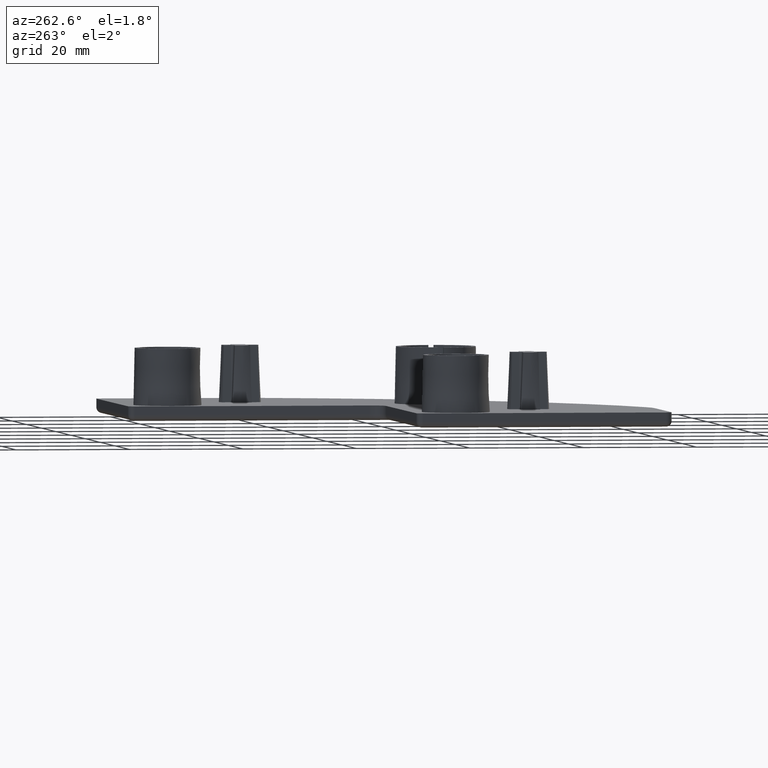
[diagram: clean part render]
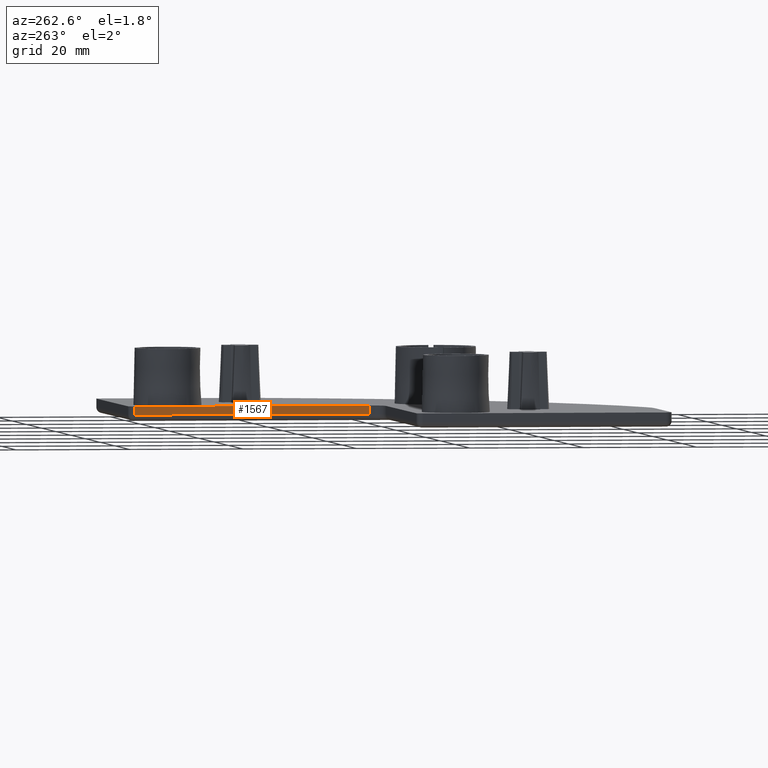
[diagram: same view with one face highlighted and labeled with its STEP entity id]
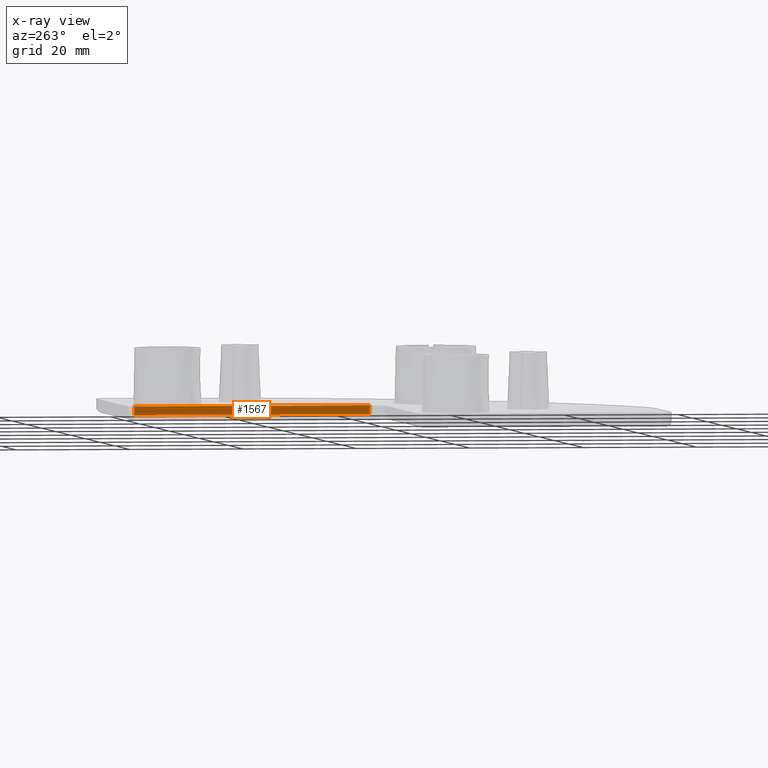
[diagram: x-ray of the same camera — body ghosted, the highlighted face saturated]
A machine part, auxiliary view. The second image highlights one B-rep face of the part: STEP entity #1567.
The next image is the same camera in x-ray: the body ghosted, the highlighted face saturated — about 0% of this face is hidden behind the body in this view.
In plain terms, the highlighted planar face has unit normal (-1, 0, 0).
Its self-contained STEP definition (entity closure, byte-faithful):
#265=FACE_OUTER_BOUND('',#363,.T.);
#363=EDGE_LOOP('',(#1426,#1427,#1428,#1429));
#451=LINE('',#2631,#569);
#466=LINE('',#2721,#584);
#478=LINE('',#2753,#596);
#482=LINE('',#2762,#600);
#569=VECTOR('',#2103,10.);
#584=VECTOR('',#2200,10.);
#596=VECTOR('',#2248,10.);
#600=VECTOR('',#2262,10.);
#709=VERTEX_POINT('',#2629);
#710=VERTEX_POINT('',#2630);
#741=VERTEX_POINT('',#2711);
#743=VERTEX_POINT('',#2717);
#909=EDGE_CURVE('',#709,#710,#451,.T.);
#953=EDGE_CURVE('',#741,#743,#466,.T.);
#970=EDGE_CURVE('',#709,#741,#478,.T.);
#974=EDGE_CURVE('',#710,#743,#482,.T.);
#1426=ORIENTED_EDGE('',*,*,#953,.F.);
#1427=ORIENTED_EDGE('',*,*,#970,.F.);
#1428=ORIENTED_EDGE('',*,*,#909,.T.);
#1429=ORIENTED_EDGE('',*,*,#974,.T.);
#1476=PLANE('',#1775);
#1567=ADVANCED_FACE('',(#265),#1476,.T.);
#1775=AXIS2_PLACEMENT_3D('',#2763,#2263,#2264);
#2103=DIRECTION('',(0.,1.,0.));
#2200=DIRECTION('',(0.,1.,0.));
#2248=DIRECTION('',(0.,0.,-1.));
#2262=DIRECTION('',(0.,0.,-1.));
#2263=DIRECTION('center_axis',(-1.,0.,0.));
#2264=DIRECTION('ref_axis',(0.,1.,0.));
#2629=CARTESIAN_POINT('',(-22.5,25.,0.));
#2630=CARTESIAN_POINT('',(-22.5,66.5,0.));
#2631=CARTESIAN_POINT('',(-22.5,25.,0.));
#2711=CARTESIAN_POINT('',(-22.5,25.,-1.5));
#2717=CARTESIAN_POINT('',(-22.5,66.5,-1.5));
#2721=CARTESIAN_POINT('',(-22.5,24.2917599345795,-1.5));
#2753=CARTESIAN_POINT('',(-22.5,25.,0.));
#2762=CARTESIAN_POINT('',(-22.5,66.5,0.));
#2763=CARTESIAN_POINT('Origin',(-22.5,25.,0.));